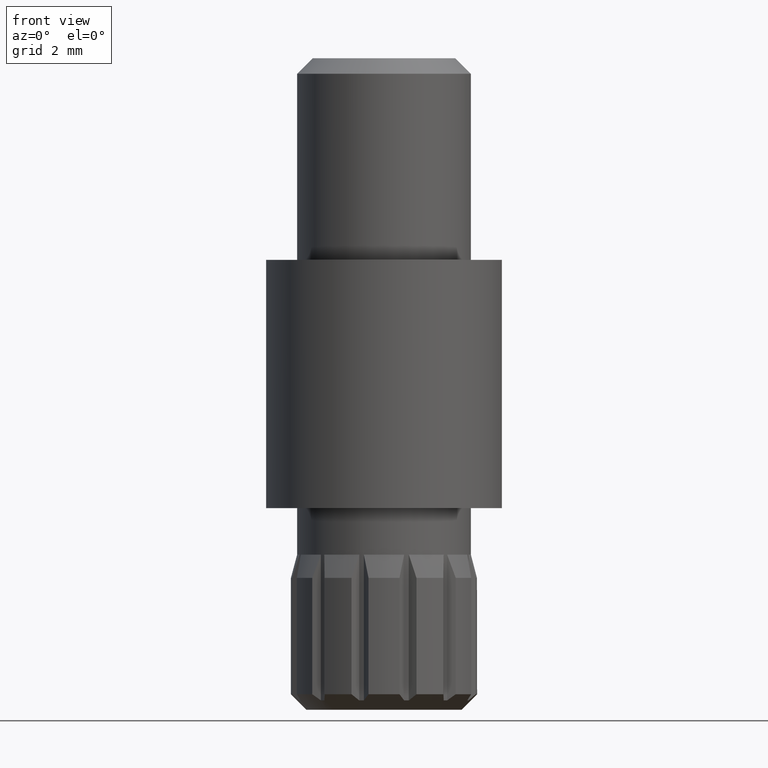
[diagram: clean part render]
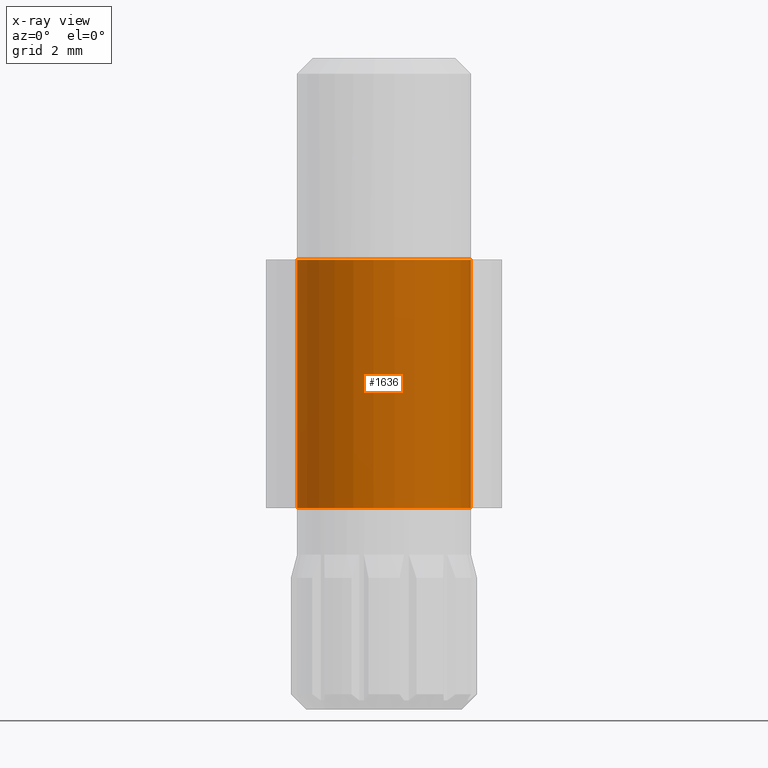
[diagram: x-ray — body ghosted, one internal face saturated and labeled with its STEP entity id]
A machine part, front view, then the same camera in x-ray: the body is ghosted and one INTERNAL B-rep face — a face not visible from any outside direction — is saturated and labeled: STEP entity #1636.
In plain terms, the highlighted cylindrical surface (partial cylindrical patch) has radius 2.8 mm, axis along (-0, -0, -1).
Its self-contained STEP definition (entity closure, byte-faithful):
#438 = DIRECTION ( 'NONE',  ( -0.0000000000000000000, -0.0000000000000000000, -1.000000000000000000 ) ) ;
#590 = CARTESIAN_POINT ( 'NONE',  ( 0.0000000000000000000, 0.0000000000000000000, 8.000000000000000000 ) ) ;
#793 = CARTESIAN_POINT ( 'NONE',  ( 2.799999999999999800, 3.429011037612588800E-016, 0.0000000000000000000 ) ) ;
#1037 = AXIS2_PLACEMENT_3D ( 'NONE', #4920, #12042, #5930 ) ;
#1515 = CARTESIAN_POINT ( 'NONE',  ( -2.799999999999999800, 0.0000000000000000000, 0.0000000000000000000 ) ) ;
#1626 = DIRECTION ( 'NONE',  ( 1.000000000000000000, 0.0000000000000000000, 0.0000000000000000000 ) ) ;
#1636 = ADVANCED_FACE ( 'NONE', ( #12846 ), #12553, .F. ) ;
#2314 = VECTOR ( 'NONE', #3745, 1000.000000000000000 ) ;
#2338 = ORIENTED_EDGE ( 'NONE', *, *, #5328, .T. ) ;
#2452 = VECTOR ( 'NONE', #438, 1000.000000000000000 ) ;
#2540 = VERTEX_POINT ( 'NONE', #6672 ) ;
#2741 = CARTESIAN_POINT ( 'NONE',  ( 2.799999999999999800, 3.429011037612588800E-016, 8.000000000000000000 ) ) ;
#3745 = DIRECTION ( 'NONE',  ( -0.0000000000000000000, -0.0000000000000000000, -1.000000000000000000 ) ) ;
#4286 = EDGE_CURVE ( 'NONE', #5794, #7931, #12935, .T. ) ;
#4738 = EDGE_LOOP ( 'NONE', ( #5359, #2338, #8038, #5652 ) ) ;
#4920 = CARTESIAN_POINT ( 'NONE',  ( 0.0000000000000000000, 0.0000000000000000000, 8.000000000000000000 ) ) ;
#4951 = VERTEX_POINT ( 'NONE', #793 ) ;
#5009 = LINE ( 'NONE', #2741, #2314 ) ;
#5328 = EDGE_CURVE ( 'NONE', #2540, #4951, #5009, .T. ) ;
#5359 = ORIENTED_EDGE ( 'NONE', *, *, #10511, .T. ) ;
#5652 = ORIENTED_EDGE ( 'NONE', *, *, #4286, .F. ) ;
#5680 = CARTESIAN_POINT ( 'NONE',  ( 0.0000000000000000000, 0.0000000000000000000, 0.0000000000000000000 ) ) ;
#5794 = VERTEX_POINT ( 'NONE', #9366 ) ;
#5930 = DIRECTION ( 'NONE',  ( -1.000000000000000000, 0.0000000000000000000, 0.0000000000000000000 ) ) ;
#6557 = AXIS2_PLACEMENT_3D ( 'NONE', #590, #7711, #1626 ) ;
#6672 = CARTESIAN_POINT ( 'NONE',  ( 2.799999999999999800, 3.429011037612588800E-016, 8.000000000000000000 ) ) ;
#6705 = DIRECTION ( 'NONE',  ( 1.000000000000000000, 0.0000000000000000000, 0.0000000000000000000 ) ) ;
#7562 = CARTESIAN_POINT ( 'NONE',  ( -2.799999999999999800, 0.0000000000000000000, 8.000000000000000000 ) ) ;
#7711 = DIRECTION ( 'NONE',  ( 0.0000000000000000000, 0.0000000000000000000, 1.000000000000000000 ) ) ;
#7931 = VERTEX_POINT ( 'NONE', #1515 ) ;
#8038 = ORIENTED_EDGE ( 'NONE', *, *, #9656, .F. ) ;
#9100 = AXIS2_PLACEMENT_3D ( 'NONE', #5680, #12813, #6705 ) ;
#9366 = CARTESIAN_POINT ( 'NONE',  ( -2.799999999999999800, 0.0000000000000000000, 8.000000000000000000 ) ) ;
#9656 = EDGE_CURVE ( 'NONE', #7931, #4951, #9746, .T. ) ;
#9746 = CIRCLE ( 'NONE', #9100, 2.799999999999999800 ) ;
#10511 = EDGE_CURVE ( 'NONE', #5794, #2540, #12710, .T. ) ;
#12042 = DIRECTION ( 'NONE',  ( -0.0000000000000000000, -0.0000000000000000000, -1.000000000000000000 ) ) ;
#12553 = CYLINDRICAL_SURFACE ( 'NONE', #1037, 2.799999999999999800 ) ;
#12710 = CIRCLE ( 'NONE', #6557, 2.799999999999999800 ) ;
#12813 = DIRECTION ( 'NONE',  ( 0.0000000000000000000, 0.0000000000000000000, 1.000000000000000000 ) ) ;
#12846 = FACE_OUTER_BOUND ( 'NONE', #4738, .T. ) ;
#12935 = LINE ( 'NONE', #7562, #2452 ) ;